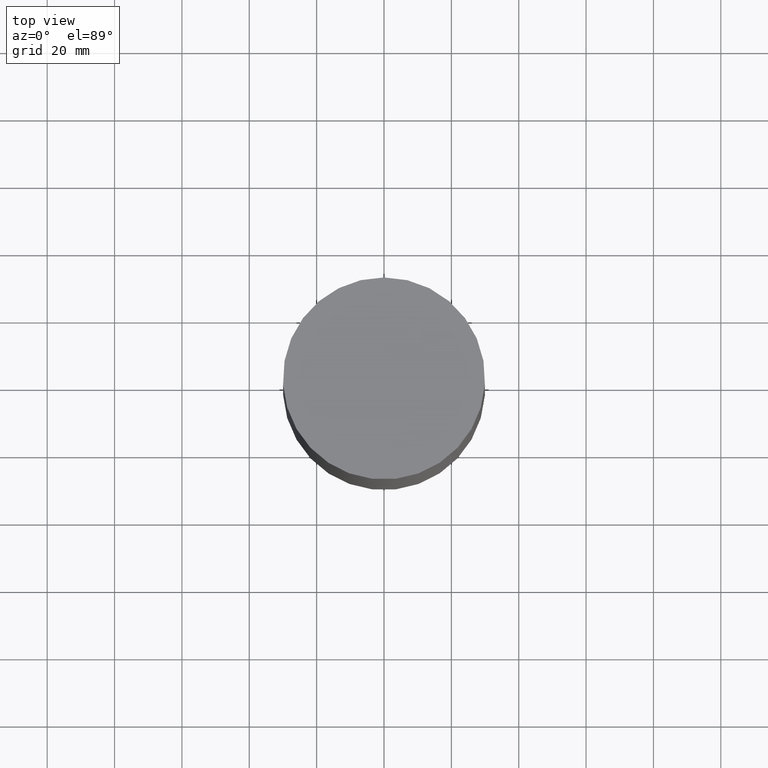
[diagram: clean part render]
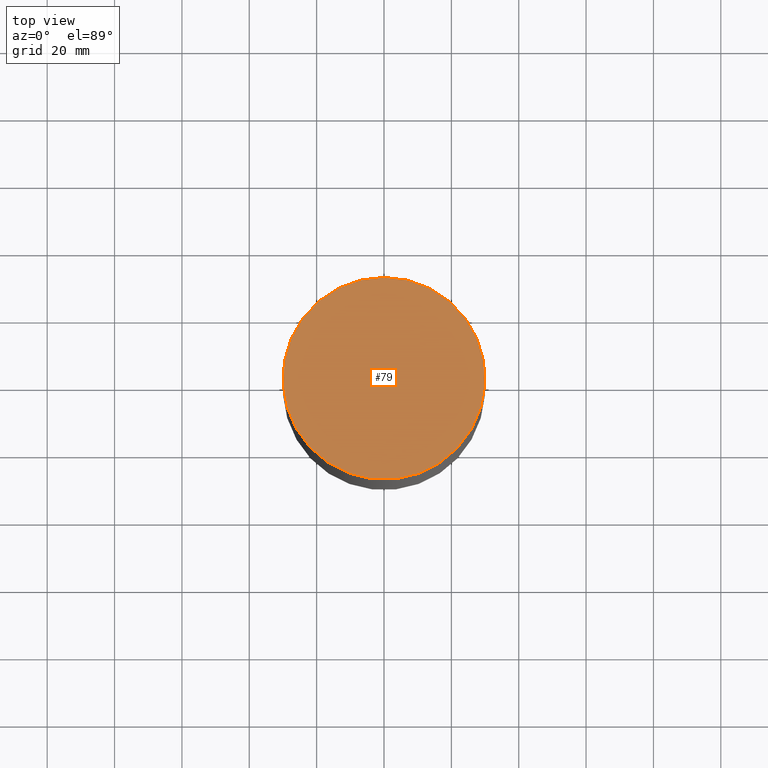
[diagram: same view with one face highlighted and labeled with its STEP entity id]
A machine part, top view. The second image highlights one B-rep face of the part: STEP entity #79.
In plain terms, the highlighted planar face has unit normal (-0, 0, 1).
Its self-contained STEP definition (entity closure, byte-faithful):
#79=ADVANCED_FACE('',(#92),#93,.T.);
#92=FACE_OUTER_BOUND('',#105,.T.);
#93=PLANE('',#106);
#105=EDGE_LOOP('',(#126));
#106=AXIS2_PLACEMENT_3D('',#127,#128,#129);
#126=ORIENTED_EDGE('',*,*,#133,.T.);
#127=CARTESIAN_POINT('',(6.85274612344835E-031,15.0,-1.2373884516481E-014));
#128=DIRECTION('',(-6.12323399573677E-017,8.24925634432064E-016,1.0));
#129=DIRECTION('',(4.56849741563223E-032,1.0,-8.24925634432064E-016));
#133=EDGE_CURVE('',#140,#140,#141,.T.);
#140=VERTEX_POINT('',#148);
#141=CIRCLE('',#149,30.0);
#148=CARTESIAN_POINT('',(1.37054922468967E-030,30.0,-2.47477690329619E-014));
#149=AXIS2_PLACEMENT_3D('',#159,#160,#161);
#159=CARTESIAN_POINT('',(1.74032777401202E-030,3.48065554802404E-030,-2.8421709430404E-014));
#160=DIRECTION('',(-6.12323399573677E-017,-1.22464679914735E-016,1.0));
#161=DIRECTION('',(-1.23259516440783E-032,1.0,1.22464679914735E-016));